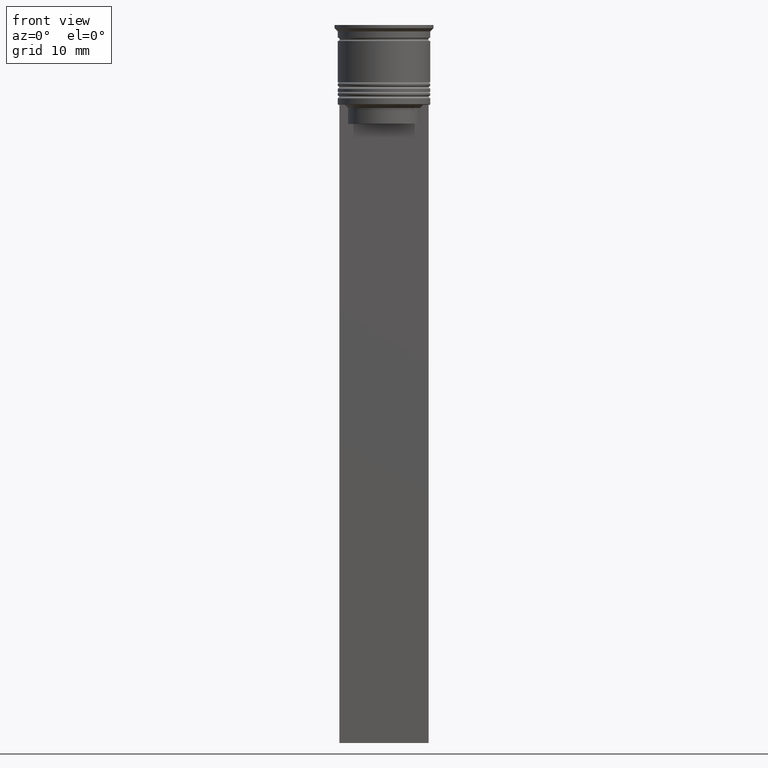
[diagram: clean part render]
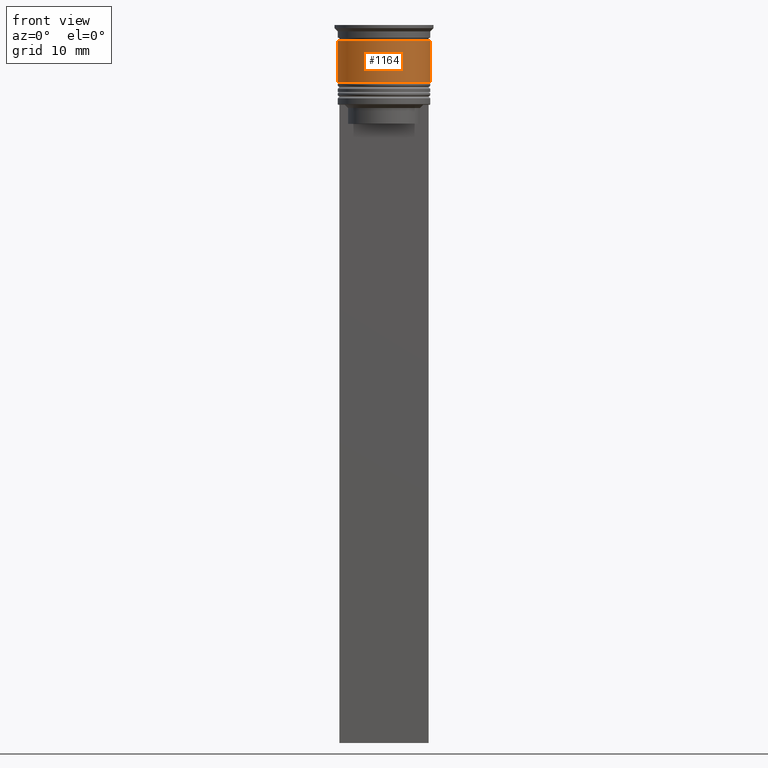
[diagram: same view with one face highlighted and labeled with its STEP entity id]
A machine part, front view. The second image highlights one B-rep face of the part: STEP entity #1164.
In plain terms, the highlighted cylindrical surface (partial cylindrical patch) has radius 7.25 mm, axis along (-0, -0, 1).
Its self-contained STEP definition (entity closure, byte-faithful):
#156 = DIRECTION ( 'NONE',  ( 1.000000000000000000, 0.000000000000000000, 0.000000000000000000 ) ) ;
#223 = CARTESIAN_POINT ( 'NONE',  ( 7.249999999999999112, 0.000000000000000000, 0.000000000000000000 ) ) ;
#250 = CARTESIAN_POINT ( 'NONE',  ( -7.250000000000000888, 8.878689293818312046E-16, -9.000000000000001776 ) ) ;
#273 = LINE ( 'NONE', #223, #1195 ) ;
#299 = ORIENTED_EDGE ( 'NONE', *, *, #697, .F. ) ;
#327 = DIRECTION ( 'NONE',  ( 1.000000000000000000, 0.000000000000000000, 0.000000000000000000 ) ) ;
#354 = CARTESIAN_POINT ( 'NONE',  ( 7.250000000000000888, 0.000000000000000000, -9.000000000000001776 ) ) ;
#378 = CARTESIAN_POINT ( 'NONE',  ( 7.249999999999997335, 0.000000000000000000, -2.500000000000000444 ) ) ;
#387 = VECTOR ( 'NONE', #1616, 1000.000000000000000 ) ;
#486 = FACE_OUTER_BOUND ( 'NONE', #1827, .T. ) ;
#538 = CARTESIAN_POINT ( 'NONE',  ( 0.000000000000000000, 0.000000000000000000, -2.500000000000000444 ) ) ;
#697 = EDGE_CURVE ( 'NONE', #1462, #1055, #896, .T. ) ;
#810 = AXIS2_PLACEMENT_3D ( 'NONE', #1230, #1218, #327 ) ;
#896 = LINE ( 'NONE', #2154, #387 ) ;
#914 = VERTEX_POINT ( 'NONE', #354 ) ;
#923 = AXIS2_PLACEMENT_3D ( 'NONE', #538, #1647, #1632 ) ;
#1024 = CARTESIAN_POINT ( 'NONE',  ( 0.000000000000000000, 0.000000000000000000, -9.000000000000001776 ) ) ;
#1055 = VERTEX_POINT ( 'NONE', #1689 ) ;
#1112 = CIRCLE ( 'NONE', #1792, 7.250000000000000888 ) ;
#1164 = ADVANCED_FACE ( 'NONE', ( #486 ), #2144, .T. ) ;
#1178 = EDGE_CURVE ( 'NONE', #1462, #914, #1112, .T. ) ;
#1195 = VECTOR ( 'NONE', #1344, 1000.000000000000000 ) ;
#1218 = DIRECTION ( 'NONE',  ( -0.000000000000000000, -0.000000000000000000, 1.000000000000000000 ) ) ;
#1230 = CARTESIAN_POINT ( 'NONE',  ( 0.000000000000000000, 0.000000000000000000, 0.000000000000000000 ) ) ;
#1243 = DIRECTION ( 'NONE',  ( -0.000000000000000000, -0.000000000000000000, 1.000000000000000000 ) ) ;
#1344 = DIRECTION ( 'NONE',  ( -0.000000000000000000, -0.000000000000000000, 1.000000000000000000 ) ) ;
#1462 = VERTEX_POINT ( 'NONE', #250 ) ;
#1492 = EDGE_CURVE ( 'NONE', #914, #1687, #273, .T. ) ;
#1509 = ORIENTED_EDGE ( 'NONE', *, *, #1178, .T. ) ;
#1554 = ORIENTED_EDGE ( 'NONE', *, *, #1492, .T. ) ;
#1616 = DIRECTION ( 'NONE',  ( -0.000000000000000000, -0.000000000000000000, 1.000000000000000000 ) ) ;
#1632 = DIRECTION ( 'NONE',  ( 1.000000000000000000, 0.000000000000000000, 0.000000000000000000 ) ) ;
#1647 = DIRECTION ( 'NONE',  ( -0.000000000000000000, -0.000000000000000000, 1.000000000000000000 ) ) ;
#1687 = VERTEX_POINT ( 'NONE', #378 ) ;
#1689 = CARTESIAN_POINT ( 'NONE',  ( -7.249999999999997335, 8.878689293818308102E-16, -2.500000000000000444 ) ) ;
#1724 = EDGE_CURVE ( 'NONE', #1055, #1687, #1948, .T. ) ;
#1792 = AXIS2_PLACEMENT_3D ( 'NONE', #1024, #1243, #156 ) ;
#1827 = EDGE_LOOP ( 'NONE', ( #299, #1509, #1554, #1932 ) ) ;
#1932 = ORIENTED_EDGE ( 'NONE', *, *, #1724, .F. ) ;
#1948 = CIRCLE ( 'NONE', #923, 7.249999999999997335 ) ;
#2144 = CYLINDRICAL_SURFACE ( 'NONE', #810, 7.249999999999999112 ) ;
#2154 = CARTESIAN_POINT ( 'NONE',  ( -7.249999999999999112, 8.878689293818310074E-16, 0.000000000000000000 ) ) ;